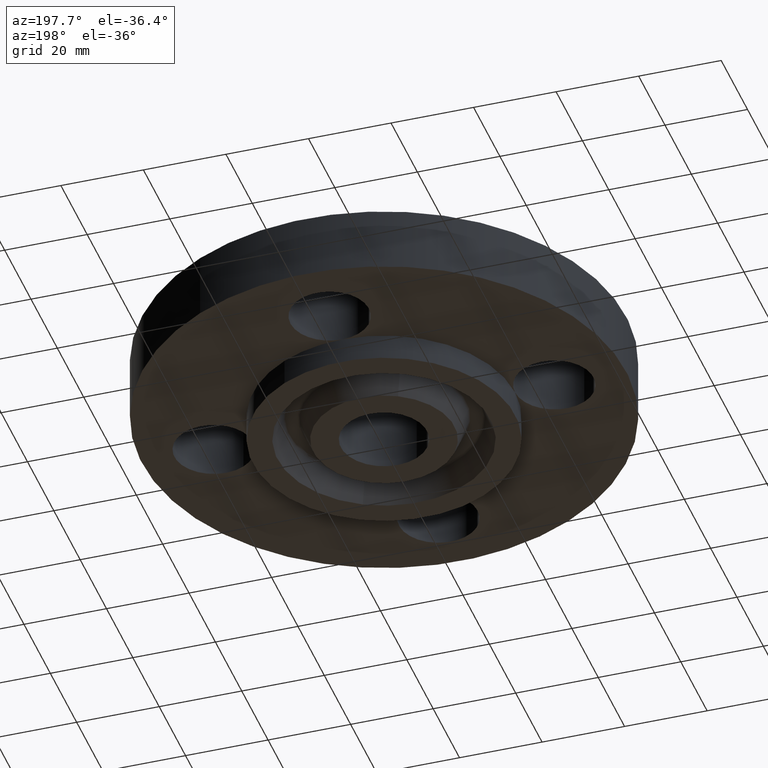
[diagram: clean part render]
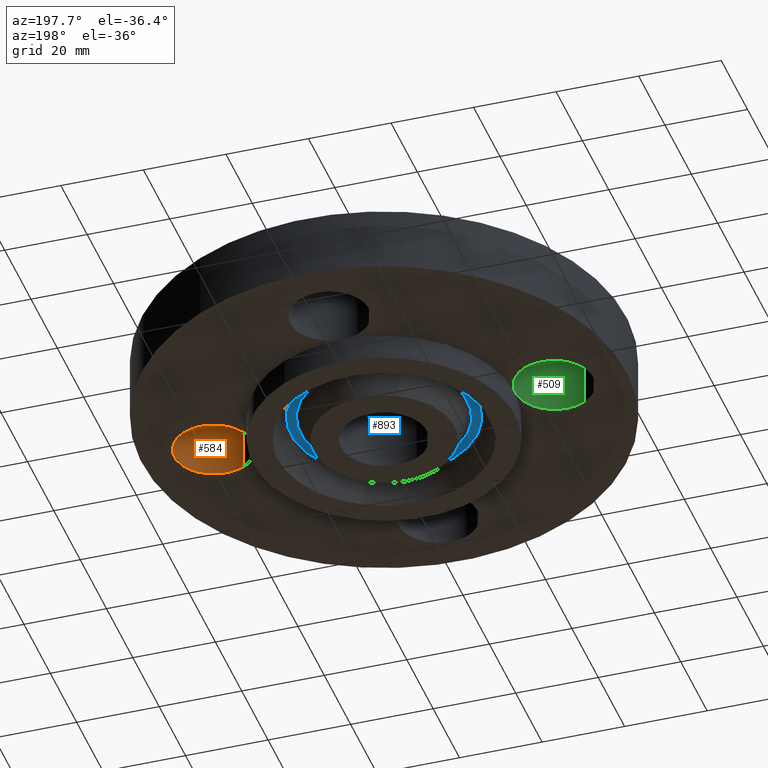
[diagram: same view with three faces highlighted in distinct colors, each labeled with its STEP entity id]
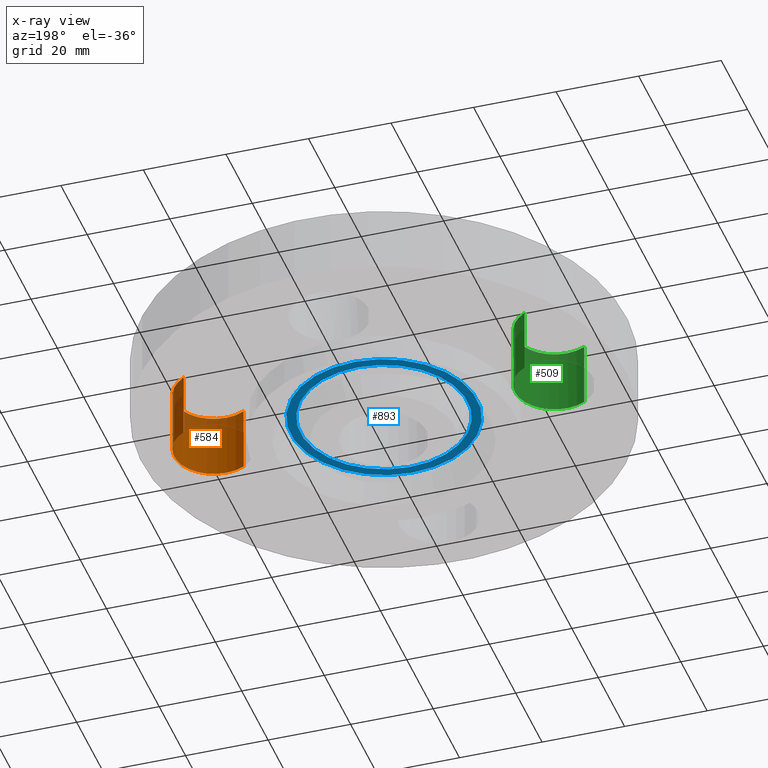
[diagram: x-ray of the same camera — body ghosted, the three highlighted faces saturated]
A machine part, auxiliary view with three faces highlighted in distinct colors.
The next image is the same camera in x-ray (body ghosted, the three faces saturated) — at least one of them is partly hidden behind the body in this view.
Their STEP definitions:

[orange] entity #584 — the highlighted cylindrical surface (partial cylindrical patch) has radius 9.525 mm, axis along (0, -0, -1).
#354=AXIS2_PLACEMENT_3D('Circle Axis2P3D',#352,#353,$) ;
#557=AXIS2_PLACEMENT_3D('Cylinder Axis2P3D',#554,#555,#556) ;
#575=AXIS2_PLACEMENT_3D('Circle Axis2P3D',#573,#574,$) ;
#349=CARTESIAN_POINT('Vertex',(1.44521542303,-0.32909346071,0.)) ;
#352=CARTESIAN_POINT('Axis2P3D Location',(1.62500000001,-1.39870617276E-016,0.)) ;
#356=CARTESIAN_POINT('Vertex',(1.80478457698,0.32909346071,0.)) ;
#554=CARTESIAN_POINT('Axis2P3D Location',(1.62500000001,-1.8023868212E-016,0.616062992128)) ;
#559=CARTESIAN_POINT('Line Origine',(1.80478457698,0.32909346071,0.310000000001)) ;
#563=CARTESIAN_POINT('Vertex',(1.80478457698,0.32909346071,0.620000000002)) ;
#566=CARTESIAN_POINT('Line Origine',(1.44521542303,-0.32909346071,0.310000000001)) ;
#570=CARTESIAN_POINT('Vertex',(1.44521542303,-0.32909346071,0.620000000002)) ;
#573=CARTESIAN_POINT('Axis2P3D Location',(1.62500000001,-1.8023868212E-016,0.620000000002)) ;
#353=DIRECTION('Axis2P3D Direction',(0.,0.,-0.0393700787402)) ;
#555=DIRECTION('Axis2P3D Direction',(0.,-0.,-0.0393700787402)) ;
#556=DIRECTION('Axis2P3D XDirection',(-0.0188750212049,-0.0345504945626,0.)) ;
#560=DIRECTION('Vector Direction',(0.,0.,-0.0393700787402)) ;
#567=DIRECTION('Vector Direction',(0.,0.,-0.0393700787402)) ;
#574=DIRECTION('Axis2P3D Direction',(0.,-0.,-0.0393700787402)) ;
#561=VECTOR('Line Direction',#560,0.0393700787402) ;
#568=VECTOR('Line Direction',#567,0.0393700787402) ;
#579=ORIENTED_EDGE('',*,*,#565,.F.) ;
#580=ORIENTED_EDGE('',*,*,#358,.T.) ;
#581=ORIENTED_EDGE('',*,*,#572,.T.) ;
#582=ORIENTED_EDGE('',*,*,#577,.F.) ;
#584=ADVANCED_FACE('PartBody',(#583),#558,.F.) ;
#355=CIRCLE('generated circle',#354,0.375000000001) ;
#576=CIRCLE('generated circle',#575,0.375000000001) ;
#558=CYLINDRICAL_SURFACE('generated cylinder',#557,0.375000000001) ;
#358=EDGE_CURVE('',#357,#350,#355,.T.) ;
#565=EDGE_CURVE('',#357,#564,#562,.F.) ;
#572=EDGE_CURVE('',#350,#571,#569,.F.) ;
#577=EDGE_CURVE('',#564,#571,#576,.T.) ;
#578=EDGE_LOOP('',(#579,#580,#581,#582)) ;
#583=FACE_OUTER_BOUND('',#578,.T.) ;
#562=LINE('Line',#559,#561) ;
#569=LINE('Line',#566,#568) ;
#350=VERTEX_POINT('',#349) ;
#357=VERTEX_POINT('',#356) ;
#564=VERTEX_POINT('',#563) ;
#571=VERTEX_POINT('',#570) ;

[blue] entity #893 — the highlighted planar face has unit normal (0, 0, -1).
#306=AXIS2_PLACEMENT_3D('Plane Axis2P3D',#303,#304,#305) ;
#799=AXIS2_PLACEMENT_3D('Circle Axis2P3D',#797,#798,$) ;
#818=AXIS2_PLACEMENT_3D('Circle Axis2P3D',#816,#817,$) ;
#877=AXIS2_PLACEMENT_3D('Circle Axis2P3D',#875,#876,$) ;
#886=AXIS2_PLACEMENT_3D('Circle Axis2P3D',#884,#885,$) ;
#303=CARTESIAN_POINT('Axis2P3D Location',(0.,1.25000000001,0.)) ;
#794=CARTESIAN_POINT('Vertex',(0.426383260285,-0.780489322696,-3.0596697529E-017)) ;
#797=CARTESIAN_POINT('Axis2P3D Location',(0.,0.,-3.0596697529E-017)) ;
#801=CARTESIAN_POINT('Vertex',(-0.426383260285,0.780489322696,-3.0596697529E-017)) ;
#816=CARTESIAN_POINT('Axis2P3D Location',(0.,0.,-3.0596697529E-017)) ;
#875=CARTESIAN_POINT('Axis2P3D Location',(0.,0.,0.)) ;
#879=CARTESIAN_POINT('Vertex',(0.382887048882,-0.700870041781,3.93386111088E-017)) ;
#881=CARTESIAN_POINT('Vertex',(-0.382887048882,0.700870041781,3.93386111088E-017)) ;
#884=CARTESIAN_POINT('Axis2P3D Location',(0.,0.,0.)) ;
#304=DIRECTION('Axis2P3D Direction',(0.,0.,-0.0393700787402)) ;
#305=DIRECTION('Axis2P3D XDirection',(0.0393700787402,0.,0.)) ;
#798=DIRECTION('Axis2P3D Direction',(0.,0.,0.0393700787402)) ;
#817=DIRECTION('Axis2P3D Direction',(0.,0.,0.0393700787402)) ;
#876=DIRECTION('Axis2P3D Direction',(0.,0.,-0.0393700787402)) ;
#885=DIRECTION('Axis2P3D Direction',(0.,0.,-0.0393700787402)) ;
#872=ORIENTED_EDGE('',*,*,#820,.F.) ;
#873=ORIENTED_EDGE('',*,*,#803,.F.) ;
#890=ORIENTED_EDGE('',*,*,#883,.T.) ;
#891=ORIENTED_EDGE('',*,*,#888,.T.) ;
#892=FACE_BOUND('',#889,.T.) ;
#893=ADVANCED_FACE('PartBody',(#874,#892),#307,.T.) ;
#800=CIRCLE('generated circle',#799,0.889362843554) ;
#819=CIRCLE('generated circle',#818,0.889362843554) ;
#878=CIRCLE('generated circle',#877,0.798637156453) ;
#887=CIRCLE('generated circle',#886,0.798637156453) ;
#803=EDGE_CURVE('',#795,#802,#800,.T.) ;
#820=EDGE_CURVE('',#802,#795,#819,.T.) ;
#883=EDGE_CURVE('',#880,#882,#878,.F.) ;
#888=EDGE_CURVE('',#882,#880,#887,.F.) ;
#871=EDGE_LOOP('',(#872,#873)) ;
#889=EDGE_LOOP('',(#890,#891)) ;
#874=FACE_OUTER_BOUND('',#871,.T.) ;
#307=PLANE('',#306) ;
#795=VERTEX_POINT('',#794) ;
#802=VERTEX_POINT('',#801) ;
#880=VERTEX_POINT('',#879) ;
#882=VERTEX_POINT('',#881) ;

[green] entity #509 — the highlighted cylindrical surface (partial cylindrical patch) has radius 9.525 mm, axis along (0, 0, -1).
#385=AXIS2_PLACEMENT_3D('Circle Axis2P3D',#383,#384,$) ;
#399=AXIS2_PLACEMENT_3D('Circle Axis2P3D',#397,#398,$) ;
#469=AXIS2_PLACEMENT_3D('Cylinder Axis2P3D',#466,#467,#468) ;
#499=AXIS2_PLACEMENT_3D('Circle Axis2P3D',#497,#498,$) ;
#244=CARTESIAN_POINT('Vertex',(-1.25000000001,-1.39870617276E-016,0.)) ;
#383=CARTESIAN_POINT('Axis2P3D Location',(-1.62500000001,-2.79741234551E-016,0.)) ;
#387=CARTESIAN_POINT('Vertex',(-1.44521542303,0.32909346071,0.)) ;
#394=CARTESIAN_POINT('Vertex',(-1.80478457698,-0.32909346071,0.)) ;
#397=CARTESIAN_POINT('Axis2P3D Location',(-1.62500000001,-2.79741234551E-016,0.)) ;
#466=CARTESIAN_POINT('Axis2P3D Location',(-1.62500000001,-2.98507657293E-016,0.616062992128)) ;
#471=CARTESIAN_POINT('Line Origine',(-1.80478457698,-0.32909346071,0.310000000001)) ;
#475=CARTESIAN_POINT('Vertex',(-1.80478457698,-0.32909346071,0.620000000002)) ;
#478=CARTESIAN_POINT('Line Origine',(-1.44521542303,0.32909346071,0.310000000001)) ;
#482=CARTESIAN_POINT('Vertex',(-1.44521542303,0.32909346071,0.620000000002)) ;
#497=CARTESIAN_POINT('Axis2P3D Location',(-1.62500000001,-2.98507657293E-016,0.620000000002)) ;
#384=DIRECTION('Axis2P3D Direction',(0.,0.,-0.0393700787402)) ;
#398=DIRECTION('Axis2P3D Direction',(0.,0.,-0.0393700787402)) ;
#467=DIRECTION('Axis2P3D Direction',(0.,0.,-0.0393700787402)) ;
#468=DIRECTION('Axis2P3D XDirection',(0.0188750212049,0.0345504945626,0.)) ;
#472=DIRECTION('Vector Direction',(0.,0.,-0.0393700787402)) ;
#479=DIRECTION('Vector Direction',(0.,0.,-0.0393700787402)) ;
#498=DIRECTION('Axis2P3D Direction',(0.,0.,-0.0393700787402)) ;
#473=VECTOR('Line Direction',#472,0.0393700787402) ;
#480=VECTOR('Line Direction',#479,0.0393700787402) ;
#503=ORIENTED_EDGE('',*,*,#484,.F.) ;
#504=ORIENTED_EDGE('',*,*,#389,.T.) ;
#505=ORIENTED_EDGE('',*,*,#401,.T.) ;
#506=ORIENTED_EDGE('',*,*,#477,.T.) ;
#507=ORIENTED_EDGE('',*,*,#501,.F.) ;
#509=ADVANCED_FACE('PartBody',(#508),#470,.F.) ;
#386=CIRCLE('generated circle',#385,0.375000000001) ;
#400=CIRCLE('generated circle',#399,0.375000000001) ;
#500=CIRCLE('generated circle',#499,0.375000000001) ;
#470=CYLINDRICAL_SURFACE('generated cylinder',#469,0.375000000001) ;
#389=EDGE_CURVE('',#388,#245,#386,.T.) ;
#401=EDGE_CURVE('',#245,#395,#400,.T.) ;
#477=EDGE_CURVE('',#395,#476,#474,.F.) ;
#484=EDGE_CURVE('',#388,#483,#481,.F.) ;
#501=EDGE_CURVE('',#483,#476,#500,.T.) ;
#502=EDGE_LOOP('',(#503,#504,#505,#506,#507)) ;
#508=FACE_OUTER_BOUND('',#502,.T.) ;
#474=LINE('Line',#471,#473) ;
#481=LINE('Line',#478,#480) ;
#245=VERTEX_POINT('',#244) ;
#388=VERTEX_POINT('',#387) ;
#395=VERTEX_POINT('',#394) ;
#476=VERTEX_POINT('',#475) ;
#483=VERTEX_POINT('',#482) ;